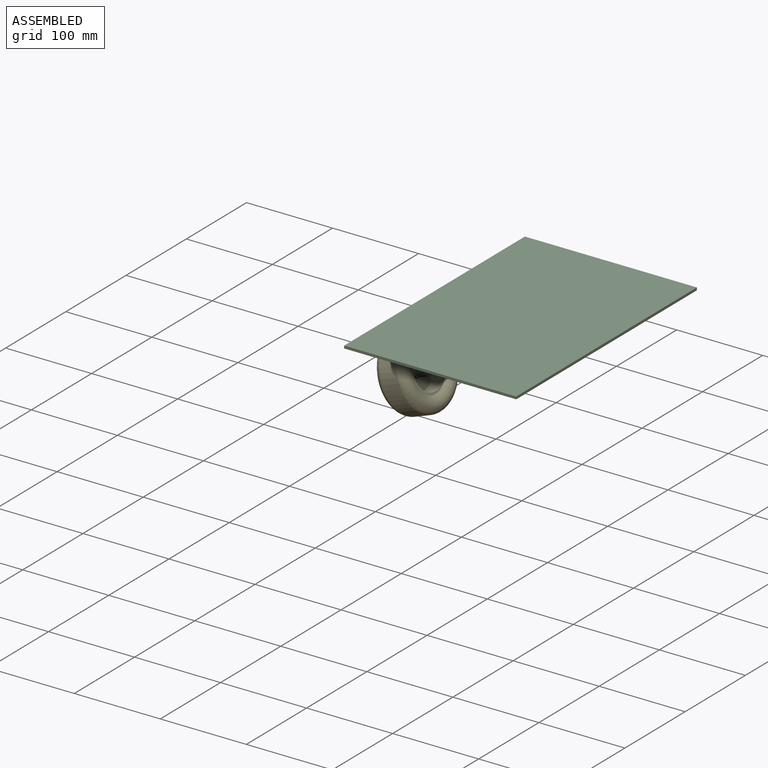
[diagram: assembled view]
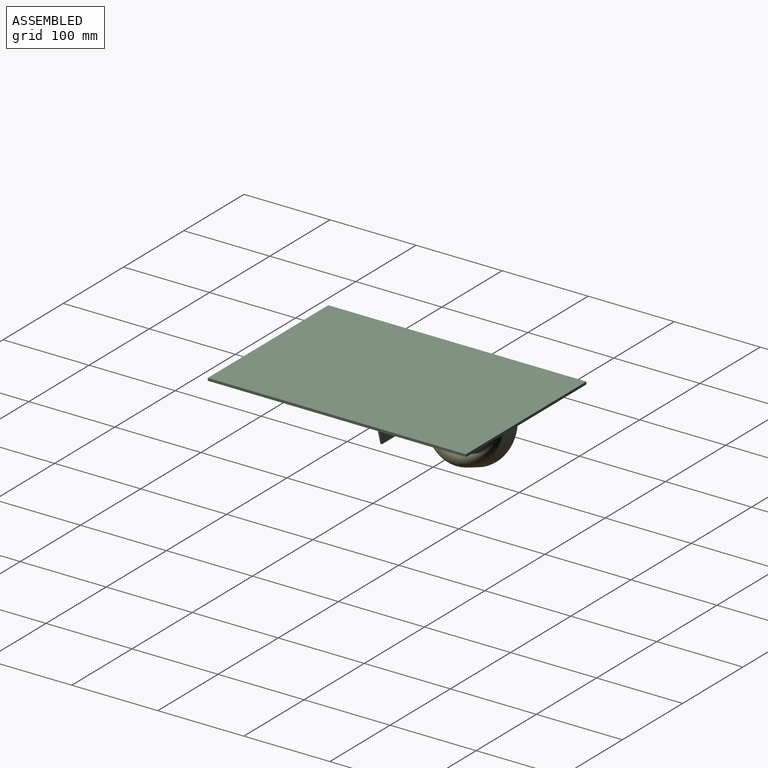
[diagram: assembled view, second angle]
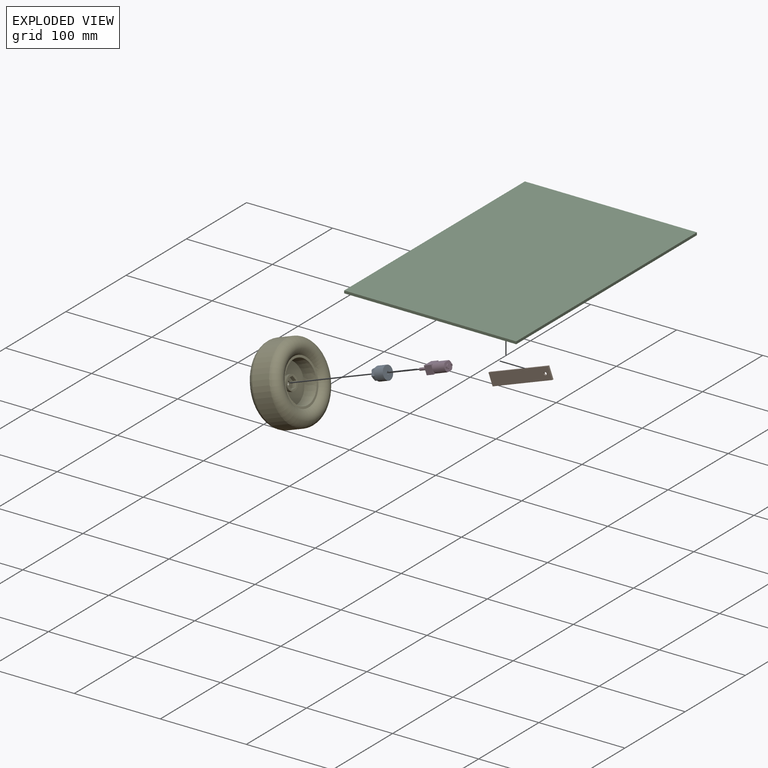
[diagram: exploded view]
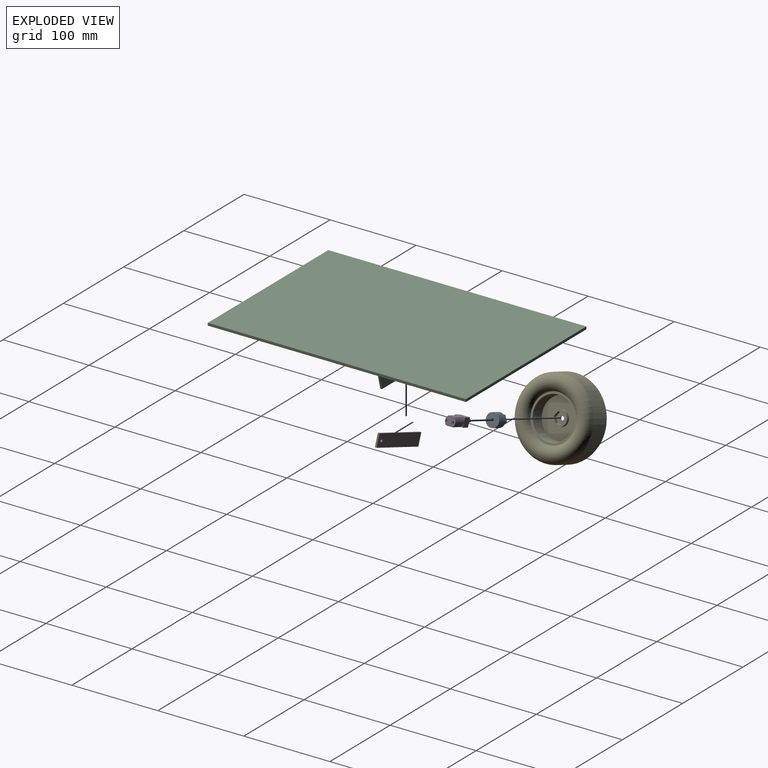
[diagram: exploded view, second angle]
ASSEMBLY  parts=5 mates=4
PART A: 12 faces, bbox 15.4x15.4x15.5 mm
  f0: plane 13.39x11.68mm, normal (0,0,-1), area 116.5mm2, adj f1,f2,f3,f4,f5,f6
  f1: plane 5.84x4.5mm, normal (0.87,0.49,0), area 30.1mm2, adj f0,f2,f4,f8
  f2: plane 6.7x4.5mm, normal (0.01,1,0), area 30.1mm2, adj f0,f1,f3,f8
  f3: plane 5.76x4.5mm, normal (-0.86,0.51,0), area 30.1mm2, adj f0,f2,f5,f8
  f4: plane 5.76x4.5mm, normal (0.86,-0.51,0), area 30.1mm2, adj f0,f1,f6,f8
  f5: plane 5.84x4.5mm, normal (-0.87,-0.49,0), area 30.1mm2, adj f0,f3,f6,f8
  f6: plane 6.7x4.5mm, normal (-0.01,-1,0), area 30.1mm2, adj f0,f4,f5,f8
  f7: plane 15.39x15.39mm, normal (0,0,1), area 179.1mm2, adj f9,f10
  f8: plane 15.39x15.39mm, normal (0,0,-1), area 69.6mm2, adj f1,f2,f3,f4,f5,f6,f10
  f9: cylinder r=1.5mm len=11mm, axis (0,0,-1), area 103.7mm2, adj f7,f11
  f10: cylinder r=7.7mm len=15.39mm, axis (0,0,-1), area 532mm2, adj f7,f8
  f11: plane 3x3mm, normal (0,0,1), area 7.1mm2, adj f9
PART B: 7 faces, bbox 73.7x2x14.2 mm
  f0: plane 14.2x2mm, normal (-1,0,0), area 28.4mm2, adj f1,f3,f5,f6
  f1: plane 73.74x2mm, normal (0,0,-1), area 147.5mm2, adj f0,f2,f5,f6
  f2: plane 14.2x2mm, normal (1,0,0), area 28.4mm2, adj f1,f3,f5,f6
  f3: plane 73.74x2mm, normal (0,0,1), area 147.5mm2, adj f0,f2,f5,f6
  f4: cylinder r=1.75mm len=3.5mm, axis (0,1,0), area 22mm2, adj f5,f6
  f5: plane 73.74x14.2mm, normal (0,-1,0), area 1037.7mm2, adj f0,f1,f2,f3,f4
  f6: plane 73.74x14.2mm, normal (0,1,0), area 1037.7mm2, adj f0,f1,f2,f3,f4
PART C: 12 faces, bbox 200x300x58.2 mm
  f0: plane 300x3mm, normal (-1,0,0), area 900mm2, adj f1,f3,f4,f5
  f1: plane 200x3mm, normal (0,-1,0), area 600mm2, adj f0,f2,f4,f5
  f2: plane 300x3mm, normal (1,0,0), area 900mm2, adj f1,f3,f4,f5
  f3: plane 200x3mm, normal (0,1,0), area 600mm2, adj f0,f2,f4,f5
  f4: plane 300x200mm, normal (0,0,1), area 60000mm2, adj f0,f1,f2,f3
  f5: plane 300x200mm, normal (0,0,-1), area 59840.8mm2, adj f0,f1,f2,f3,f6,f8,f10,f11
  f6: plane 55.21x14.79mm, normal (-0.97,0,-0.26), area 114.3mm2, adj f5,f7,f10,f11
  f7: plane 50x2mm, normal (0,0,-1), area 100mm2, adj f6,f8,f10,f11
  f8: plane 55.21x14.79mm, normal (0.97,0,-0.26), area 114.3mm2, adj f5,f7,f10,f11
  f9: cylinder r=1.75mm len=3.5mm, axis (0,1,0), area 22mm2, adj f10,f11
  f10: plane 79.59x55.21mm, normal (0,-1,0), area 3567.6mm2, adj f5,f6,f7,f8,f9
  f11: plane 79.59x55.21mm, normal (0,1,0), area 3567.6mm2, adj f5,f6,f7,f8,f9
PART D: 29 faces, bbox 37x12x10 mm
  f0: plane 12x10mm, normal (1,0,0), area 82.5mm2, adj f6,f8,f15,f16,f17,f19,f20,f21
  f1: plane 5x2.68mm, normal (1,0,0), area 4mm2, adj f6,f7,f16
  f2: plane 5x2.68mm, normal (1,0,0), area 4mm2, adj f7,f8,f16
  f3: plane 5x2.68mm, normal (1,0,0), area 4mm2, adj f5,f8,f15
  f4: plane 4x4mm, normal (-1,0,0), area 6.3mm2, adj f11,f12,f13
  f5: plane 10x9mm, normal (0,1,0), area 90mm2, adj f3,f6,f8,f9,f10
  f6: plane 24x12mm, normal (0,0,1), area 207.5mm2, adj f0,f1,f5,f7,f9,f10,f15,f16
  f7: plane 10x9mm, normal (0,-1,0), area 90mm2, adj f1,f2,f6,f8,f10
  f8: plane 24x12mm, normal (0,0,-1), area 207.5mm2, adj f0,f2,f3,f5,f7,f10,f15,f16
  f9: plane 5x2.68mm, normal (1,0,0), area 4mm2, adj f5,f6,f15
  f10: plane 12x10mm, normal (-1,0,0), area 107.4mm2, adj f5,f6,f7,f8,f11
  f11: cylinder r=2mm len=4mm, axis (1,0,0), area 12.6mm2, adj f4,f10
  f12: cylinder r=1.5mm len=10mm, axis (1,0,0), area 69mm2, adj f4,f13,f14
  f13: plane 10x2.24mm, normal (0,1,0), area 22.4mm2, adj f4,f12,f14
  f14: plane 3x2.5mm, normal (-1,0,0), area 6.3mm2, adj f12,f13
  f15: cylinder r=6mm len=15mm, axis (-1,0,0), area 177.3mm2, adj f0,f3,f6,f8,f9
  f16: cylinder r=6mm len=15mm, axis (-1,0,0), area 177.3mm2, adj f0,f1,f2,f6,f8
  f17: cylinder r=2.5mm len=5mm, axis (-1,0,0), area 15.7mm2, adj f0,f18
  f18: plane 5x5mm, normal (1,0,0), area 19.6mm2, adj f17
  f19: plane 2x0.5mm, normal (0,0,1), area 1mm2, adj f0,f20,f22,f23
  f20: plane 2x2mm, normal (0,-1,0), area 4mm2, adj f0,f19,f21,f23
  f21: plane 2x0.5mm, normal (0,0,-1), area 1mm2, adj f0,f20,f22,f23
  f22: plane 2x2mm, normal (0,1,0), area 4mm2, adj f0,f19,f21,f23
  f23: plane 2x0.5mm, normal (1,0,0), area 1mm2, adj f19,f20,f21,f22
  f24: plane 2x2mm, normal (0,1,0), area 4mm2, adj f0,f25,f27,f28
  f25: plane 2x0.5mm, normal (0,0,1), area 1mm2, adj f0,f24,f26,f28
  f26: plane 2x2mm, normal (0,-1,0), area 4mm2, adj f0,f25,f27,f28
  f27: plane 2x0.5mm, normal (0,0,-1), area 1mm2, adj f0,f24,f26,f28
  f28: plane 2x0.5mm, normal (1,0,0), area 1mm2, adj f24,f25,f26,f27
PART E: 20 faces, bbox 37x96.7x96.7 mm
  f0: plane 17x17mm, normal (1,0,0), area 102.3mm2, adj f5,f13,f14,f15,f16,f17,f18
  f1: cylinder r=2.25mm len=4.5mm, axis (-1,0,0), area 21.2mm2, adj f4,f19
  f2: plane 40x40mm, normal (-1,0,0), area 1123.9mm2, adj f3,f12
  f3: cylinder r=6.5mm len=13mm, axis (-1,0,0), area 163.4mm2, adj f2,f4
  f4: plane 13x13mm, normal (-1,0,0), area 116.8mm2, adj f1,f3
  f5: cylinder r=8.5mm len=17mm, axis (-1,0,0), area 186.9mm2, adj f0,f6
  f6: plane 45x45mm, normal (1,0,0), area 1363.5mm2, adj f5,f7
  f7: cone r=22.5mm half-angle=3.9deg, axis (1,0,0), area 2100.4mm2, adj f6,f8
  f8: plane 52x52mm, normal (1,0,0), area 388.8mm2, adj f7,f9
  f9: torus R=34.83mm, axis (-1,0,0), area 5531.8mm2, adj f8,f10
  f10: cylinder r=44.5mm len=89mm, axis (-1,0,0), area 5871.6mm2, adj f9,f11
  f11: torus R=34.83mm, axis (-1,0,0), area 5531.8mm2, adj f10,f12
  f12: cone r=26mm half-angle=50.2deg, axis (-1,0,0), area 1128.7mm2, adj f2,f11
  f13: plane 6.93x4.5mm, normal (0,0.01,1), area 31.2mm2, adj f0,f14,f18,f19
  f14: plane 5.96x4.5mm, normal (0,-0.86,0.51), area 31.2mm2, adj f0,f13,f15,f19
  f15: plane 6.04x4.5mm, normal (0,-0.87,-0.49), area 31.2mm2, adj f0,f14,f16,f19
  f16: plane 6.93x4.5mm, normal (0,-0.01,-1), area 31.2mm2, adj f0,f15,f17,f19
  f17: plane 5.96x4.5mm, normal (0,0.86,-0.51), area 31.2mm2, adj f0,f16,f18,f19
  f18: plane 6.04x4.5mm, normal (0,0.87,0.49), area 31.2mm2, adj f0,f13,f17,f19
  f19: plane 13.86x12.08mm, normal (1,0,0), area 108.8mm2, adj f1,f13,f14,f15,f16,f17,f18
PLACE A rot(axis=(0.5,0.5,0.71),109.2deg) t=(-37.92,4.97,-35.08)mm
PLACE B rot(axis=(0.98,0,0.17),180deg) t=(116.64,-9.35,-37.44)mm
PLACE C t=(99.97,-1.91,54.13)mm fixed
PLACE D rot(axis=(0,-1,0),20deg) t=(-8,0.09,-26.86)mm
PLACE E rot(axis=(-0.07,-1,-0.01),20.1deg) t=(-22.56,0.09,-32.16)mm
MATE fastened A.f9 <-> D.f11  axis (0.94,0,0.34) through (-8.94,0.09,-27.2)mm
MATE revolute E.f1 <-> D.f11  axis (0.94,0,0.34) through (-8.94,0.09,-27.2)mm
MATE fastened D.f11 <-> B.f0  axis (0.94,0,0.34) through (15.49,0.09,-18.31)mm
MATE revolute B.f4 <-> C.f9  axis (0,-1,0) through (78.97,-1.91,4.68)mm
